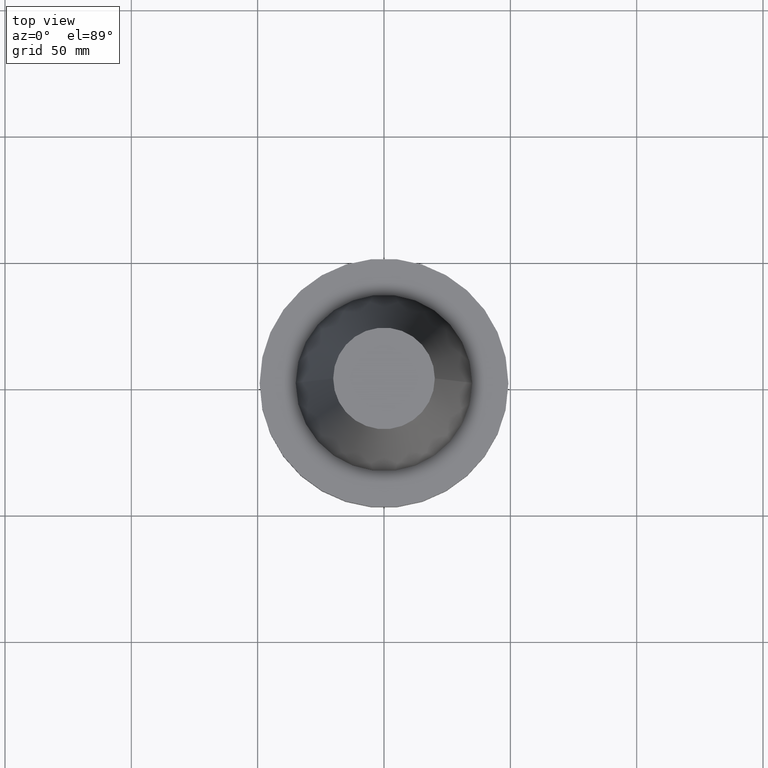
[diagram: clean part render]
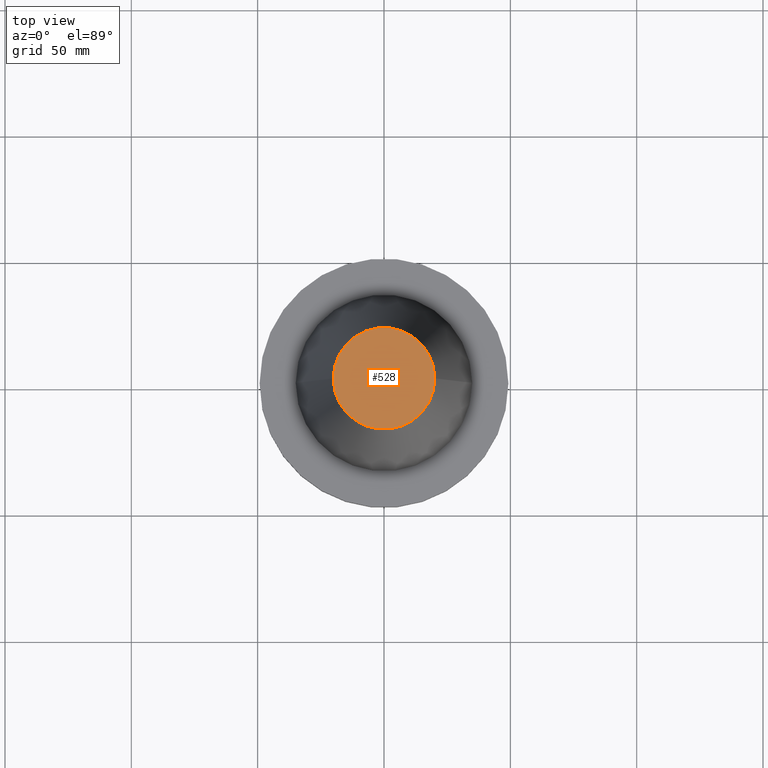
[diagram: same view with one face highlighted and labeled with its STEP entity id]
A machine part, top view. The second image highlights one B-rep face of the part: STEP entity #528.
In plain terms, the highlighted planar face has unit normal (0, 0, -1).
Its self-contained STEP definition (entity closure, byte-faithful):
#148 = AXIS2_PLACEMENT_3D ( 'NONE', #574, #463, #263 ) ;
#184 = PLANE ( 'NONE',  #148 ) ;
#206 = DIRECTION ( 'NONE',  ( -0.000000000000000000, -0.000000000000000000, 1.000000000000000000 ) ) ;
#263 = DIRECTION ( 'NONE',  ( -1.000000000000000000, 0.000000000000000000, -0.000000000000000000 ) ) ;
#269 = CARTESIAN_POINT ( 'NONE',  ( -20.10819343178871321, 0.000000000000000000, 101.5999999999999801 ) ) ;
#298 = CIRCLE ( 'NONE', #577, 20.10819343178871321 ) ;
#300 = EDGE_CURVE ( 'NONE', #593, #621, #622, .T. ) ;
#332 = FACE_OUTER_BOUND ( 'NONE', #695, .T. ) ;
#373 = ORIENTED_EDGE ( 'NONE', *, *, #300, .T. ) ;
#463 = DIRECTION ( 'NONE',  ( 0.000000000000000000, 0.000000000000000000, -1.000000000000000000 ) ) ;
#471 = DIRECTION ( 'NONE',  ( 1.000000000000000000, 0.000000000000000000, 0.000000000000000000 ) ) ;
#473 = AXIS2_PLACEMENT_3D ( 'NONE', #791, #206, #471 ) ;
#528 = ADVANCED_FACE ( 'NONE', ( #332 ), #184, .F. ) ;
#531 = CARTESIAN_POINT ( 'NONE',  ( 0.000000000000000000, 0.000000000000000000, 101.5999999999999801 ) ) ;
#574 = CARTESIAN_POINT ( 'NONE',  ( 0.000000000000000000, 20.10819343178871321, 101.5999999999999943 ) ) ;
#577 = AXIS2_PLACEMENT_3D ( 'NONE', #531, #595, #785 ) ;
#593 = VERTEX_POINT ( 'NONE', #269 ) ;
#595 = DIRECTION ( 'NONE',  ( -0.000000000000000000, -0.000000000000000000, 1.000000000000000000 ) ) ;
#621 = VERTEX_POINT ( 'NONE', #731 ) ;
#622 = CIRCLE ( 'NONE', #473, 20.10819343178871321 ) ;
#636 = ORIENTED_EDGE ( 'NONE', *, *, #667, .T. ) ;
#667 = EDGE_CURVE ( 'NONE', #621, #593, #298, .T. ) ;
#695 = EDGE_LOOP ( 'NONE', ( #373, #636 ) ) ;
#731 = CARTESIAN_POINT ( 'NONE',  ( 20.10819343178871321, 3.369811209154858606E-15, 101.5999999999999801 ) ) ;
#785 = DIRECTION ( 'NONE',  ( 1.000000000000000000, 0.000000000000000000, 0.000000000000000000 ) ) ;
#791 = CARTESIAN_POINT ( 'NONE',  ( 0.000000000000000000, 0.000000000000000000, 101.5999999999999801 ) ) ;